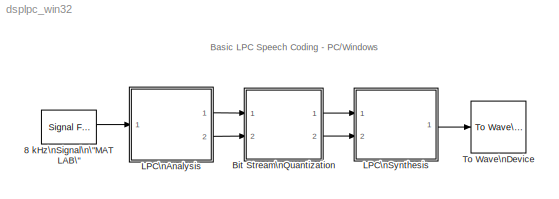
MODEL dsplpc_win32
KIND model
CONFIG PreLoadFcn = load mtlb;
BLOCK [Reference] 8 kHz\nSignal\n\"MATLAB\"  REF=dspsrcs4/Signal From\nWorkspace
  OutputAfterFinalValue = Setting to zero
  Ports = [0, 1]
  ShowPortLabels = on
  SourceBlock = dspsrcs4/Signal From\nWorkspace
  SourceType = Signal From Workspace
  Ts = 1/8000
  X = mtlb
  nsamps = 80
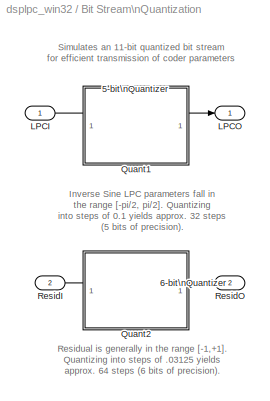
BLOCK [SubSystem] Bit Stream\nQuantization
  Ports = [2, 2]
  TreatAsAtomicUnit = off
BLOCK [Quantizer] Bit Stream\nQuantization/5-bit\nQuantizer
  LinearizeAsGain = off
  QuantizationInterval = 0.1
BLOCK [Quantizer] Bit Stream\nQuantization/6-bit\nQuantizer
  LinearizeAsGain = off
  QuantizationInterval = 0.03125
BLOCK [Inport] Bit Stream\nQuantization/LPCI
  IconDisplay = Port number
BLOCK [Outport] Bit Stream\nQuantization/LPCO
  BusOutputAsStruct = off
  IconDisplay = Port number
BLOCK [SubSystem] Bit Stream\nQuantization/Quant1
  MaskDisplay = disp('')
  MaskIconFrame = on
  MaskIconOpaque = on
  MaskIconRotate = none
  MaskIconUnits = autoscale
  Ports = []
  TreatAsAtomicUnit = off
BLOCK [SubSystem] Bit Stream\nQuantization/Quant2
  MaskDisplay = disp('')
  MaskIconFrame = on
  MaskIconOpaque = on
  MaskIconRotate = none
  MaskIconUnits = autoscale
  Ports = []
  TreatAsAtomicUnit = off
BLOCK [Inport] Bit Stream\nQuantization/ResidI
  IconDisplay = Port number
  Port = 2
BLOCK [Outport] Bit Stream\nQuantization/ResidO
  BusOutputAsStruct = off
  IconDisplay = Port number
  Port = 2
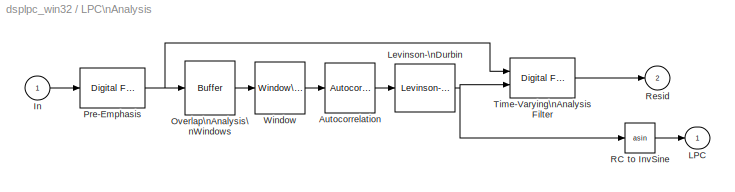
BLOCK [SubSystem] LPC\nAnalysis
  Ports = [1, 2]
  TreatAsAtomicUnit = off
BLOCK [Reference] LPC\nAnalysis/Autocorrelation  REF=dspstat3/Autocorrelation
  AllPositiveLags = off
  DialogController = dspDDGCreate
  DialogControllerArgs = DataTag0
  Ports = [1, 1]
  SourceBlock = dspstat3/Autocorrelation
  SourceType = Autocorrelation
  accumFracLength = 30
  accumMode = Same as product output
  accumWordLength = 32
  additionalParams = off
  allowOverrides = on
  bias = Biased
  domain = Time
  maxlag = 10
  outputFracLength = 15
  outputMode = Same as input
  outputWordLength = 16
  overflowMode = off
  prodOutputFracLength = 30
  prodOutputMode = Same as input
  prodOutputWordLength = 32
  roundingMode = Floor
BLOCK [Inport] LPC\nAnalysis/In
  IconDisplay = Port number
BLOCK [Outport] LPC\nAnalysis/LPC
  BusOutputAsStruct = off
  IconDisplay = Port number
BLOCK [Reference] LPC\nAnalysis/Levinson-\nDurbin  REF=dspsolvers/Levinson-Durbin
  DialogController = dspDDGCreate
  DialogControllerArgs = DataTag1
  Ports = [1, 1]
  SourceBlock = dspsolvers/Levinson-Durbin
  SourceType = Levinson-Durbin
  accumFracLength = 30
  accumMode = Same as input
  accumWordLength = 32
  additionalParams = off
  allowOverrides = off
  coeffOutFcn = K
  firstCoeffFracLength = 15
  firstCoeffMode = Binary point scaling
  firstCoeffWordLength = 16
  outP = off
  outputFracLength = 15
  outputMode = Same as input
  outputWordLength = 16
  overflowMode = off
  prodOutputFracLength = 30
  prodOutputMode = Same as input
  prodOutputWordLength = 32
  roundingMode = Floor
  secondCoeffFracLength = 15
  secondCoeffMode = Binary point scaling
  secondCoeffWordLength = 16
  zeroInpHandling = on
BLOCK [Reference] LPC\nAnalysis/Overlap\nAnalysis\nWindows  REF=dspbuff3/Buffer
  N = 160
  Ports = [1, 1]
  SourceBlock = dspbuff3/Buffer
  SourceType = Buffer
  V = 80
  ic = 0
BLOCK [Reference] LPC\nAnalysis/Pre-Emphasis  REF=dsparch4/Digital Filter
  AllPoleFiltStruct = Direct form
  BiQuadCoeffs = [1 0.3 0.4 1 0.1 0.2]
  CoeffSource = Specify via dialog
  DenCoeffs = [1 0.1]
  FIRFiltStruct = Direct form
  FiltPerSampPopup = One filter per frame
  IC = 0
  ICden = 0
  ICnum = 0
  IIRFiltStruct = Direct form II transposed
  LatticeCoeffs = [0.2 0.4]
  NumCoeffs = [1 -.95] / 3.0
  Ports = [1, 1]
  SourceBlock = dsparch4/Digital Filter
  SourceType = Digital Filter
  TypePopup = FIR (all zeros)
  accumFracLength = 30
  accumMode = Same as product output
  accumWordLength = 32
  additionalParams = off
  allowOverrides = on
  denIgnore = on
  firstCoeffFracLength = 15
  firstCoeffMode = Same as input
  firstCoeffWordLength = 16
  memoryFracLength = 15
  memoryMode = Same as input
  memoryWordLength = 16
  outputFracLength = 15
  outputMode = Same as input
  outputWordLength = 16
  overflowMode = off
  prodOutputFracLength = 30
  prodOutputMode = Same as input
  prodOutputWordLength = 32
  roundingMode = Floor
  secondCoeffFracLength = 15
  secondCoeffMode = Same as numerator
  secondCoeffWordLength = 16
  showAcc = off
  showCoeff = off
  showMem = off
  showMpy = off
  showOut = off
  thirdCoeffFracLength = 15
  thirdCoeffMode = Same as input
  thirdCoeffWordLength = 16
BLOCK [Trigonometry] LPC\nAnalysis/RC to InvSine
  Operator = asin
  Ports = [1, 1]
BLOCK [Outport] LPC\nAnalysis/Resid
  BusOutputAsStruct = off
  IconDisplay = Port number
  Port = 2
BLOCK [Reference] LPC\nAnalysis/Time-Varying\nAnalysis Filter  REF=dsparch4/Digital Filter
  AllPoleFiltStruct = Direct form
  BiQuadCoeffs = [1 0.3 0.4 1 0.1 0.2]
  CoeffSource = Input port(s)
  DenCoeffs = [1 0.1]
  FIRFiltStruct = Lattice MA
  FiltPerSampPopup = One filter per frame
  IC = 0
  ICden = 0
  ICnum = 0
  IIRFiltStruct = Direct form II transposed
  LatticeCoeffs = [0.2 0.4]
  NumCoeffs = [1 -.95] / 3.0
  Ports = [2, 1]
  SourceBlock = dsparch4/Digital Filter
  SourceType = Digital Filter
  TypePopup = FIR (all zeros)
  accumFracLength = 30
  accumMode = Same as product output
  accumWordLength = 32
  additionalParams = off
  allowOverrides = on
  denIgnore = on
  firstCoeffFracLength = 15
  firstCoeffMode = Same as input
  firstCoeffWordLength = 16
  memoryFracLength = 15
  memoryMode = Same as input
  memoryWordLength = 16
  outputFracLength = 15
  outputMode = Same as input
  outputWordLength = 16
  overflowMode = off
  prodOutputFracLength = 30
  prodOutputMode = Same as input
  prodOutputWordLength = 32
  roundingMode = Floor
  secondCoeffFracLength = 15
  secondCoeffMode = Same as numerator
  secondCoeffWordLength = 16
  showAcc = off
  showCoeff = off
  showMem = off
  showMpy = off
  showOut = off
  thirdCoeffFracLength = 15
  thirdCoeffMode = Same as input
  thirdCoeffWordLength = 16
BLOCK [Reference] LPC\nAnalysis/Window  REF=dspsigops/Window\nFunction
  N = 64
  OptParams = off
  Ports = [1, 1]
  Rs = 50
  SourceBlock = dspsigops/Window\nFunction
  SourceType = Window Function
  UserParams = {1.0}
  UserWindow = hamming
  additionalParams = off
  allowOverrides = on
  beta = 10
  dataType = double
  firstCoeffFracLength = 15
  firstCoeffMode = Same word length as input
  firstCoeffWordLength = 16
  fracBitsMode = Best precision
  isSigned = on
  numFracBits = 15
  outputFracLength = 15
  outputMode = Same as input
  outputWordLength = 16
  overflowMode = off
  prodOutputFracLength = 15
  prodOutputMode = Inherit via internal rule
  prodOutputWordLength = 16
  roundingMode = Floor
  sampmode = Continuous
  samptime = 1
  udDataType = sfix(16)
  winmode = Apply window to input
  winsamp = Symmetric
  wintype = Hamming
  wordLen = 16
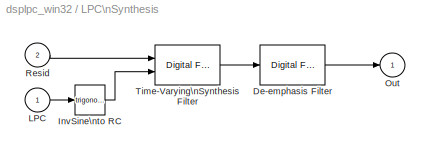
BLOCK [SubSystem] LPC\nSynthesis
  Ports = [2, 1]
  TreatAsAtomicUnit = off
BLOCK [Reference] LPC\nSynthesis/De-emphasis Filter  REF=dsparch4/Digital Filter
  AllPoleFiltStruct = Direct form
  BiQuadCoeffs = [1 0.3 0.4 1 0.1 0.2]
  CoeffSource = Specify via dialog
  DenCoeffs = [1 -.95]
  FIRFiltStruct = Direct form
  FiltPerSampPopup = One filter per frame
  IC = 0
  ICden = 0
  ICnum = 0
  IIRFiltStruct = Direct form II transposed
  LatticeCoeffs = [0.2 0.4]
  NumCoeffs = [1 -.95] / 3.0
  Ports = [1, 1]
  SourceBlock = dsparch4/Digital Filter
  SourceType = Digital Filter
  TypePopup = IIR (all poles)
  accumFracLength = 30
  accumMode = Same as product output
  accumWordLength = 32
  additionalParams = off
  allowOverrides = on
  denIgnore = on
  firstCoeffFracLength = 15
  firstCoeffMode = Same as input
  firstCoeffWordLength = 16
  memoryFracLength = 15
  memoryMode = Same as input
  memoryWordLength = 16
  outputFracLength = 15
  outputMode = Same as input
  outputWordLength = 16
  overflowMode = off
  prodOutputFracLength = 30
  prodOutputMode = Same as input
  prodOutputWordLength = 32
  roundingMode = Floor
  secondCoeffFracLength = 15
  secondCoeffMode = Same as numerator
  secondCoeffWordLength = 16
  showAcc = off
  showCoeff = off
  showMem = off
  showMpy = off
  showOut = off
  thirdCoeffFracLength = 15
  thirdCoeffMode = Same as input
  thirdCoeffWordLength = 16
BLOCK [Trigonometry] LPC\nSynthesis/InvSine\nto RC
  Ports = [1, 1]
BLOCK [Inport] LPC\nSynthesis/LPC
  IconDisplay = Port number
BLOCK [Outport] LPC\nSynthesis/Out
  BusOutputAsStruct = off
  IconDisplay = Port number
BLOCK [Inport] LPC\nSynthesis/Resid
  IconDisplay = Port number
  Port = 2
BLOCK [Reference] LPC\nSynthesis/Time-Varying\nSynthesis Filter  REF=dsparch4/Digital Filter
  AllPoleFiltStruct = Lattice AR
  BiQuadCoeffs = [1 0.3 0.4 1 0.1 0.2]
  CoeffSource = Input port(s)
  DenCoeffs = [1 0.1]
  FIRFiltStruct = Direct form
  FiltPerSampPopup = One filter per frame
  IC = 0
  ICden = 0
  ICnum = 0
  IIRFiltStruct = Direct form II transposed
  LatticeCoeffs = [0.2 0.4]
  NumCoeffs = [1 -.95] / 3.0
  Ports = [2, 1]
  SourceBlock = dsparch4/Digital Filter
  SourceType = Digital Filter
  TypePopup = IIR (all poles)
  accumFracLength = 30
  accumMode = Same as product output
  accumWordLength = 32
  additionalParams = off
  allowOverrides = on
  denIgnore = on
  firstCoeffFracLength = 15
  firstCoeffMode = Same as input
  firstCoeffWordLength = 16
  memoryFracLength = 15
  memoryMode = Same as input
  memoryWordLength = 16
  outputFracLength = 15
  outputMode = Same as input
  outputWordLength = 16
  overflowMode = off
  prodOutputFracLength = 30
  prodOutputMode = Same as input
  prodOutputWordLength = 32
  roundingMode = Floor
  secondCoeffFracLength = 15
  secondCoeffMode = Same as numerator
  secondCoeffWordLength = 16
  showAcc = off
  showCoeff = off
  showMem = off
  showMpy = off
  showOut = off
  thirdCoeffFracLength = 15
  thirdCoeffMode = Same as input
  thirdCoeffWordLength = 16
BLOCK [Reference] To Wave\nDevice  REF=dspwin32/To Wave\nDevice
  Ports = [1]
  SourceBlock = dspwin32/To Wave\nDevice
  SourceType = To Wave Device
  bufDuration = 1
  enable24Bit = off
  initDelay = 0.0
  useDefaultDevice = on
ANNOTATION (root): \nBasic LPC Speech Coding - PC/Windows\n
ANNOTATION Bit Stream\nQuantization: Inverse Sine LPC parameters fall in\nthe range [-pi/2, pi/2]. Quantizing\ninto steps of 0.1 yields approx. 32 steps\n(5 bits of precision).
ANNOTATION Bit Stream\nQuantization: Residual is generally in the range [-1,+1].\nQuantizing into steps of .03125 yields\napprox. 64 steps (6 bits of precision).
ANNOTATION Bit Stream\nQuantization: Simulates an 11-bit quantized bit stream\nfor efficient transmission of coder parameters
LINE 8 kHz\nSignal\n\"MATLAB\":1 -> LPC\nAnalysis:1
LINE Bit Stream\nQuantization/5-bit\nQuantizer:1 -> Bit Stream\nQuantization/LPCO:1
LINE Bit Stream\nQuantization/6-bit\nQuantizer:1 -> Bit Stream\nQuantization/ResidO:1
LINE Bit Stream\nQuantization/LPCI:1 -> Bit Stream\nQuantization/5-bit\nQuantizer:1
LINE Bit Stream\nQuantization/ResidI:1 -> Bit Stream\nQuantization/6-bit\nQuantizer:1
LINE Bit Stream\nQuantization:1 -> LPC\nSynthesis:1
LINE Bit Stream\nQuantization:2 -> LPC\nSynthesis:2
LINE LPC\nAnalysis/Autocorrelation:1 -> LPC\nAnalysis/Levinson-\nDurbin:1
LINE LPC\nAnalysis/In:1 -> LPC\nAnalysis/Pre-Emphasis:1
NET LPC\nAnalysis/Levinson-\nDurbin:1 -> LPC\nAnalysis/RC to InvSine:1, LPC\nAnalysis/Time-Varying\nAnalysis Filter:2
LINE LPC\nAnalysis/Overlap\nAnalysis\nWindows:1 -> LPC\nAnalysis/Window:1
NET LPC\nAnalysis/Pre-Emphasis:1 -> LPC\nAnalysis/Overlap\nAnalysis\nWindows:1, LPC\nAnalysis/Time-Varying\nAnalysis Filter:1
LINE LPC\nAnalysis/RC to InvSine:1 -> LPC\nAnalysis/LPC:1
LINE LPC\nAnalysis/Time-Varying\nAnalysis Filter:1 -> LPC\nAnalysis/Resid:1
LINE LPC\nAnalysis/Window:1 -> LPC\nAnalysis/Autocorrelation:1
LINE LPC\nAnalysis:1 -> Bit Stream\nQuantization:1
LINE LPC\nAnalysis:2 -> Bit Stream\nQuantization:2
LINE LPC\nSynthesis/De-emphasis Filter:1 -> LPC\nSynthesis/Out:1
LINE LPC\nSynthesis/InvSine\nto RC:1 -> LPC\nSynthesis/Time-Varying\nSynthesis Filter:2
LINE LPC\nSynthesis/LPC:1 -> LPC\nSynthesis/InvSine\nto RC:1
LINE LPC\nSynthesis/Resid:1 -> LPC\nSynthesis/Time-Varying\nSynthesis Filter:1
LINE LPC\nSynthesis/Time-Varying\nSynthesis Filter:1 -> LPC\nSynthesis/De-emphasis Filter:1
LINE LPC\nSynthesis:1 -> To Wave\nDevice:1
note: NET lines group one-source signal fan-out (src -> all destinations, sorted); 1:1 wires keep LINE
